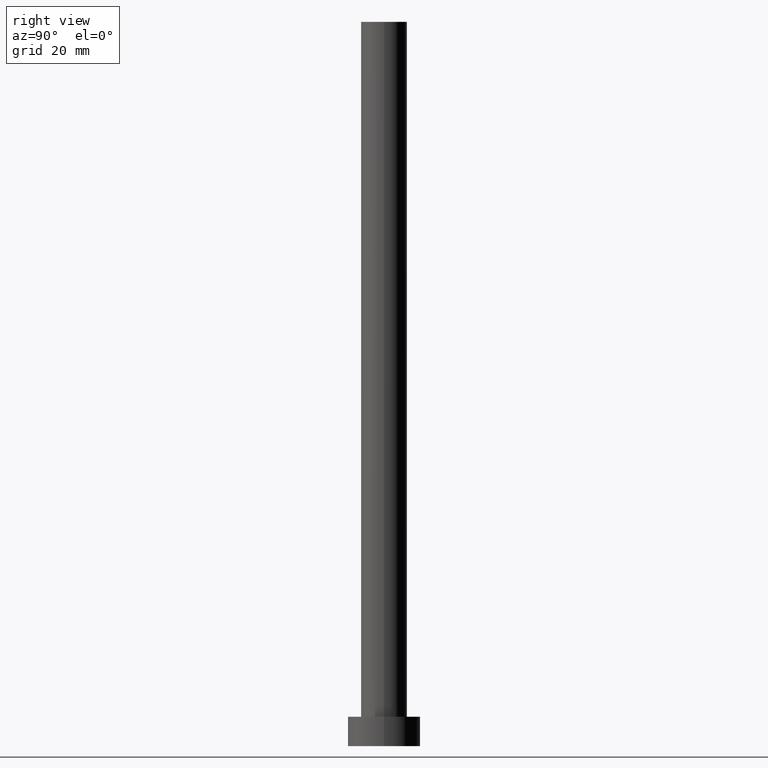
[diagram: clean part render]
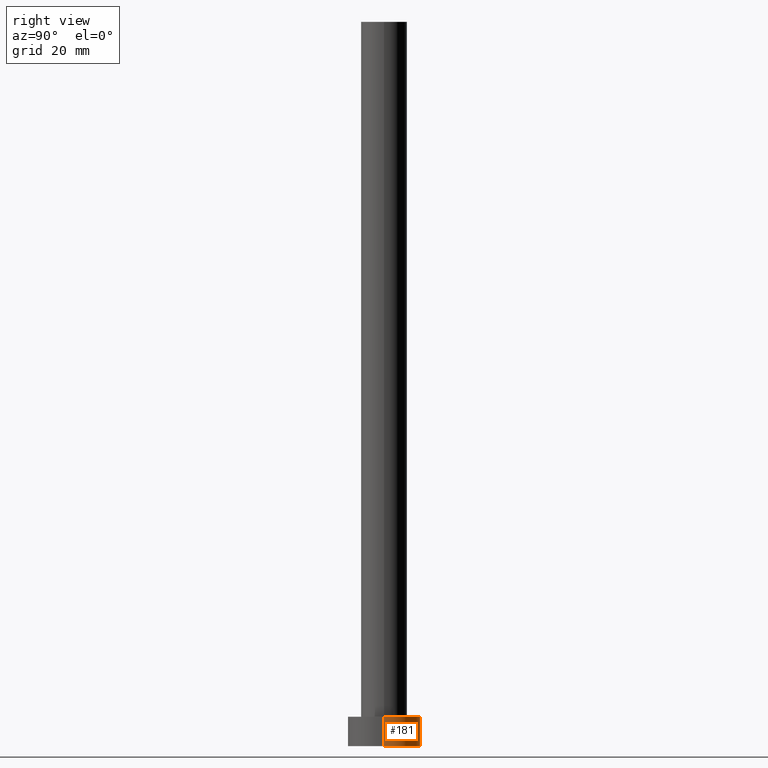
[diagram: same view with one face highlighted and labeled with its STEP entity id]
A machine part, right view. The second image highlights one B-rep face of the part: STEP entity #181.
In plain terms, the highlighted cylindrical surface (edge-blend (fillet) strip) has radius 8 mm, axis along (-0, -0, -1).
Its self-contained STEP definition (entity closure, byte-faithful):
#11 = CARTESIAN_POINT ( 'NONE',  ( 0.000000000000000000, 0.000000000000000000, 0.000000000000000000 ) ) ;
#15 = CIRCLE ( 'NONE', #144, 8.000000000000000000 ) ;
#16 = VECTOR ( 'NONE', #125, 1000.000000000000000 ) ;
#25 = CARTESIAN_POINT ( 'NONE',  ( -8.000000000000000000, 0.000000000000000000, 0.000000000000000000 ) ) ;
#27 = CARTESIAN_POINT ( 'NONE',  ( 0.000000000000000000, 0.000000000000000000, 6.500000000000000000 ) ) ;
#32 = EDGE_CURVE ( 'NONE', #111, #130, #225, .T. ) ;
#33 = LINE ( 'NONE', #53, #16 ) ;
#39 = DIRECTION ( 'NONE',  ( 0.000000000000000000, 0.000000000000000000, 1.000000000000000000 ) ) ;
#50 = EDGE_CURVE ( 'NONE', #111, #238, #15, .T. ) ;
#53 = CARTESIAN_POINT ( 'NONE',  ( -8.000000000000000000, 0.000000000000000000, 6.500000000000000000 ) ) ;
#66 = DIRECTION ( 'NONE',  ( 1.000000000000000000, 0.000000000000000000, 0.000000000000000000 ) ) ;
#71 = VECTOR ( 'NONE', #191, 1000.000000000000000 ) ;
#84 = ORIENTED_EDGE ( 'NONE', *, *, #32, .T. ) ;
#102 = CIRCLE ( 'NONE', #140, 8.000000000000000000 ) ;
#108 = EDGE_CURVE ( 'NONE', #130, #165, #102, .T. ) ;
#111 = VERTEX_POINT ( 'NONE', #113 ) ;
#113 = CARTESIAN_POINT ( 'NONE',  ( 8.000000000000000000, 9.797174393178823685E-16, 6.500000000000000000 ) ) ;
#125 = DIRECTION ( 'NONE',  ( -0.000000000000000000, -0.000000000000000000, -1.000000000000000000 ) ) ;
#127 = ORIENTED_EDGE ( 'NONE', *, *, #241, .F. ) ;
#130 = VERTEX_POINT ( 'NONE', #246 ) ;
#140 = AXIS2_PLACEMENT_3D ( 'NONE', #11, #227, #159 ) ;
#144 = AXIS2_PLACEMENT_3D ( 'NONE', #197, #39, #66 ) ;
#159 = DIRECTION ( 'NONE',  ( 1.000000000000000000, 0.000000000000000000, 0.000000000000000000 ) ) ;
#161 = CARTESIAN_POINT ( 'NONE',  ( 8.000000000000000000, 9.797174393178823685E-16, 6.500000000000000000 ) ) ;
#165 = VERTEX_POINT ( 'NONE', #25 ) ;
#181 = ADVANCED_FACE ( 'NONE', ( #213 ), #194, .T. ) ;
#186 = ORIENTED_EDGE ( 'NONE', *, *, #108, .T. ) ;
#191 = DIRECTION ( 'NONE',  ( -0.000000000000000000, -0.000000000000000000, -1.000000000000000000 ) ) ;
#194 = CYLINDRICAL_SURFACE ( 'NONE', #240, 8.000000000000000000 ) ;
#197 = CARTESIAN_POINT ( 'NONE',  ( 0.000000000000000000, 0.000000000000000000, 6.500000000000000000 ) ) ;
#208 = ORIENTED_EDGE ( 'NONE', *, *, #50, .F. ) ;
#213 = FACE_OUTER_BOUND ( 'NONE', #250, .T. ) ;
#217 = DIRECTION ( 'NONE',  ( -1.000000000000000000, 0.000000000000000000, 0.000000000000000000 ) ) ;
#225 = LINE ( 'NONE', #161, #71 ) ;
#227 = DIRECTION ( 'NONE',  ( 0.000000000000000000, 0.000000000000000000, 1.000000000000000000 ) ) ;
#236 = CARTESIAN_POINT ( 'NONE',  ( -8.000000000000000000, 0.000000000000000000, 6.500000000000000000 ) ) ;
#238 = VERTEX_POINT ( 'NONE', #236 ) ;
#240 = AXIS2_PLACEMENT_3D ( 'NONE', #27, #252, #217 ) ;
#241 = EDGE_CURVE ( 'NONE', #238, #165, #33, .T. ) ;
#246 = CARTESIAN_POINT ( 'NONE',  ( 8.000000000000000000, 9.797174393178823685E-16, 0.000000000000000000 ) ) ;
#250 = EDGE_LOOP ( 'NONE', ( #208, #84, #186, #127 ) ) ;
#252 = DIRECTION ( 'NONE',  ( -0.000000000000000000, -0.000000000000000000, -1.000000000000000000 ) ) ;